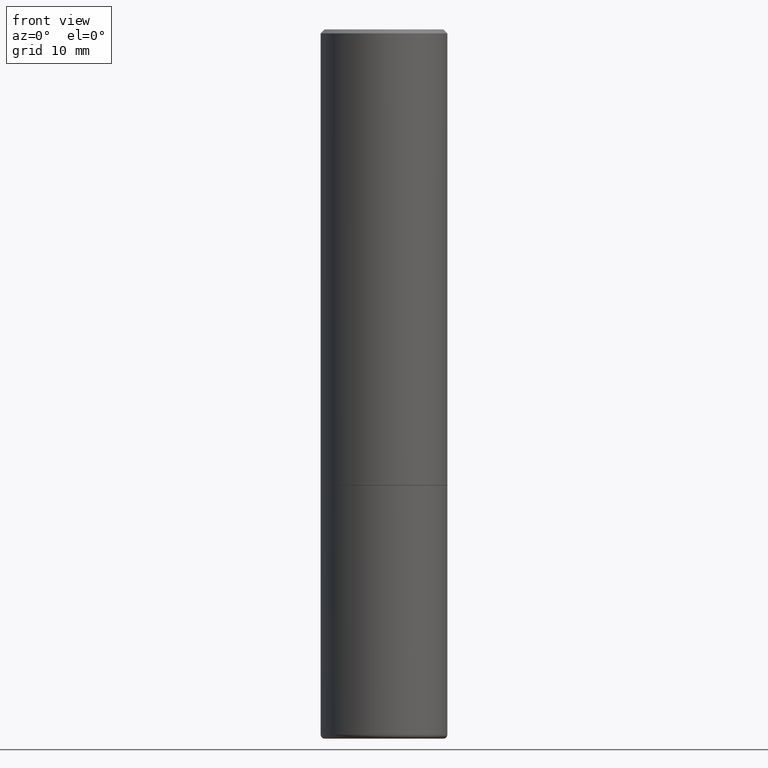
[diagram: clean part render]
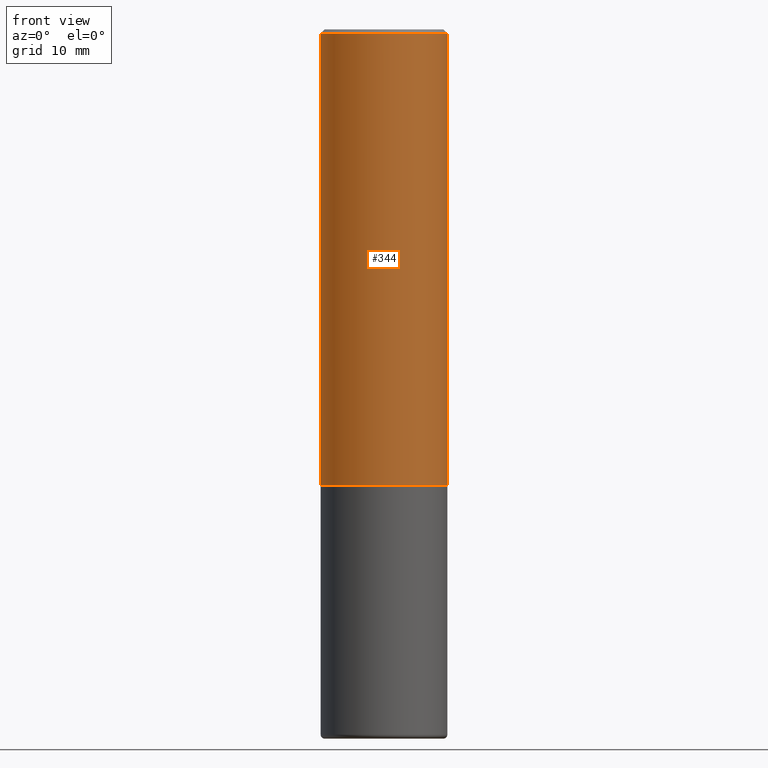
[diagram: same view with one face highlighted and labeled with its STEP entity id]
A machine part, front view. The second image highlights one B-rep face of the part: STEP entity #344.
In plain terms, the highlighted cylindrical surface (partial cylindrical patch) has radius 7.9375 mm, axis along (-0, 0, 1).
Its self-contained STEP definition (entity closure, byte-faithful):
#7 = CARTESIAN_POINT ( 'NONE',  ( -0.3124999999999998890, 2.220446049250312292E-15, -1.537167215704657391E-29 ) ) ;
#14 = VECTOR ( 'NONE', #305, 39.37007874015748143 ) ;
#28 = VERTEX_POINT ( 'NONE', #143 ) ;
#36 = ORIENTED_EDGE ( 'NONE', *, *, #186, .F. ) ;
#50 = DIRECTION ( 'NONE',  ( -2.445468806185136597E-29, 3.491481338843145583E-15, 1.000000000000000000 ) ) ;
#52 = EDGE_CURVE ( 'NONE', #397, #93, #214, .T. ) ;
#73 = AXIS2_PLACEMENT_3D ( 'NONE', #412, #120, #415 ) ;
#89 = ORIENTED_EDGE ( 'NONE', *, *, #367, .F. ) ;
#93 = VERTEX_POINT ( 'NONE', #337 ) ;
#116 = DIRECTION ( 'NONE',  ( 1.000000000000000000, -6.982962677686269077E-15, 0.000000000000000000 ) ) ;
#120 = DIRECTION ( 'NONE',  ( -2.445468806185136597E-29, 3.491481338843145583E-15, 1.000000000000000000 ) ) ;
#141 = EDGE_LOOP ( 'NONE', ( #36, #198, #205, #89 ) ) ;
#143 = CARTESIAN_POINT ( 'NONE',  ( -0.3124999999999998335, 2.112346210000093866E-15, -0.02000000000000001776 ) ) ;
#148 = CARTESIAN_POINT ( 'NONE',  ( 0.3124999999999998890, -2.182175836776957558E-15, 1.523805242436229235E-29 ) ) ;
#156 = CARTESIAN_POINT ( 'NONE',  ( 4.890937612370276662E-31, -6.982962677686296539E-17, -0.02000000000000001776 ) ) ;
#161 = CARTESIAN_POINT ( 'NONE',  ( 0.3124999999999998335, -2.213735251080465334E-15, -0.02000000000000001776 ) ) ;
#169 = AXIS2_PLACEMENT_3D ( 'NONE', #156, #50, #195 ) ;
#176 = VECTOR ( 'NONE', #407, 39.37007874015748143 ) ;
#180 = LINE ( 'NONE', #7, #14 ) ;
#186 = EDGE_CURVE ( 'NONE', #397, #28, #180, .T. ) ;
#195 = DIRECTION ( 'NONE',  ( 1.000000000000000000, -6.982962677686266711E-15, 0.000000000000000000 ) ) ;
#198 = ORIENTED_EDGE ( 'NONE', *, *, #52, .T. ) ;
#205 = ORIENTED_EDGE ( 'NONE', *, *, #223, .T. ) ;
#214 = CIRCLE ( 'NONE', #377, 0.3125000000000000000 ) ;
#222 = CARTESIAN_POINT ( 'NONE',  ( 5.499859345110370619E-29, -7.852341531058232286E-15, -2.248999999999999222 ) ) ;
#223 = EDGE_CURVE ( 'NONE', #93, #355, #248, .T. ) ;
#248 = LINE ( 'NONE', #148, #176 ) ;
#279 = DIRECTION ( 'NONE',  ( -2.445468806185136597E-29, 3.491481338843145583E-15, 1.000000000000000000 ) ) ;
#281 = CYLINDRICAL_SURFACE ( 'NONE', #73, 0.3124999999999998890 ) ;
#305 = DIRECTION ( 'NONE',  ( -2.445468806185136877E-29, 3.491481338843145188E-15, 1.000000000000000000 ) ) ;
#320 = CARTESIAN_POINT ( 'NONE',  ( -0.3125000000000000000, -1.740639529667232739E-15, -2.248999999999999222 ) ) ;
#337 = CARTESIAN_POINT ( 'NONE',  ( 0.3125000000000000000, -1.003451736783519063E-14, -2.248999999999999222 ) ) ;
#344 = ADVANCED_FACE ( 'NONE', ( #414 ), #281, .T. ) ;
#350 = CIRCLE ( 'NONE', #169, 0.3124999999999998335 ) ;
#355 = VERTEX_POINT ( 'NONE', #161 ) ;
#367 = EDGE_CURVE ( 'NONE', #28, #355, #350, .T. ) ;
#377 = AXIS2_PLACEMENT_3D ( 'NONE', #222, #279, #116 ) ;
#397 = VERTEX_POINT ( 'NONE', #320 ) ;
#407 = DIRECTION ( 'NONE',  ( -2.445468806185136877E-29, 3.491481338843145188E-15, 1.000000000000000000 ) ) ;
#412 = CARTESIAN_POINT ( 'NONE',  ( 0.000000000000000000, 0.000000000000000000, 0.000000000000000000 ) ) ;
#414 = FACE_OUTER_BOUND ( 'NONE', #141, .T. ) ;
#415 = DIRECTION ( 'NONE',  ( 1.000000000000000000, -6.982962677686266711E-15, 4.876176775795935232E-29 ) ) ;